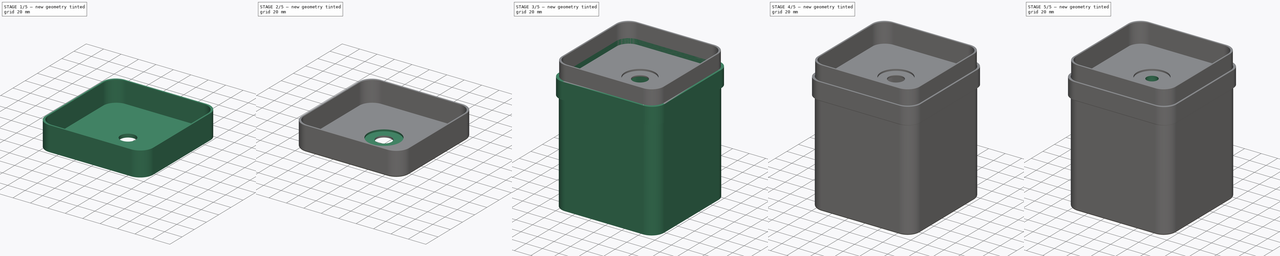
[diagram: build sequence overview — one tinted view per stage of 5, left to right]
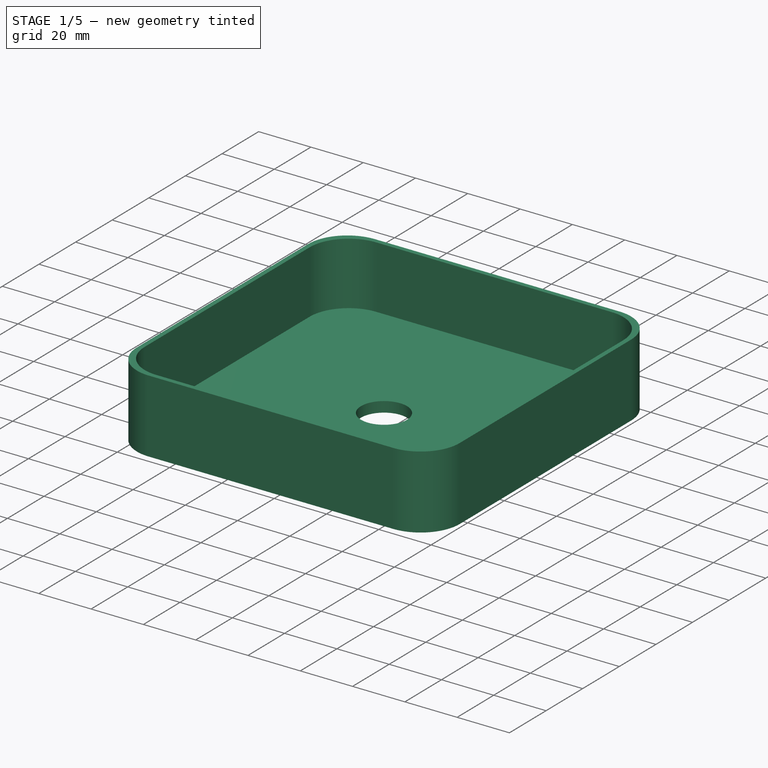
[diagram: stage 1 of 5 — iso view after this stage's code; geometry added in this stage tinted green]
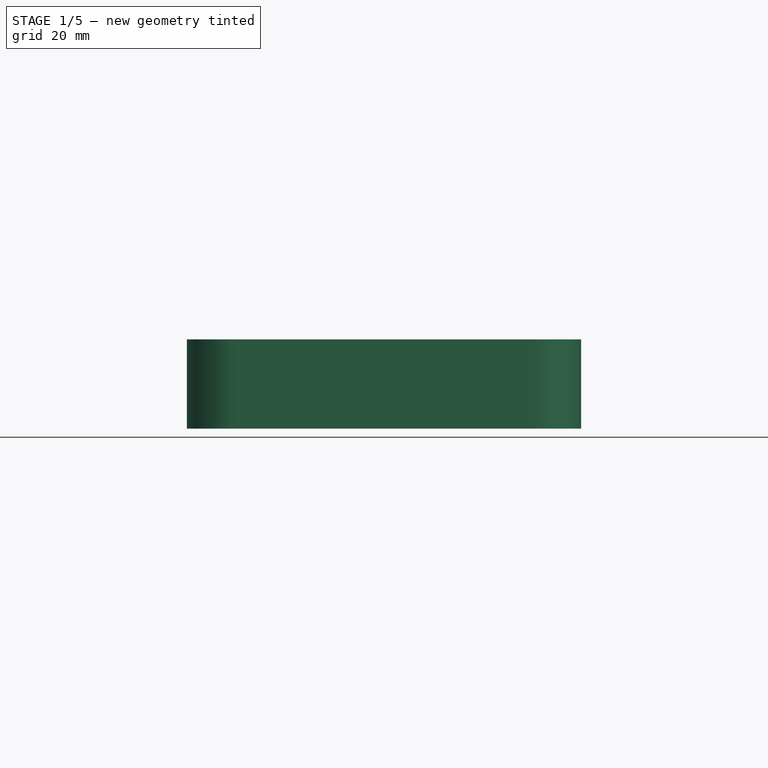
[diagram: stage 1 of 5 — front view after this stage's code; geometry added in this stage tinted green]
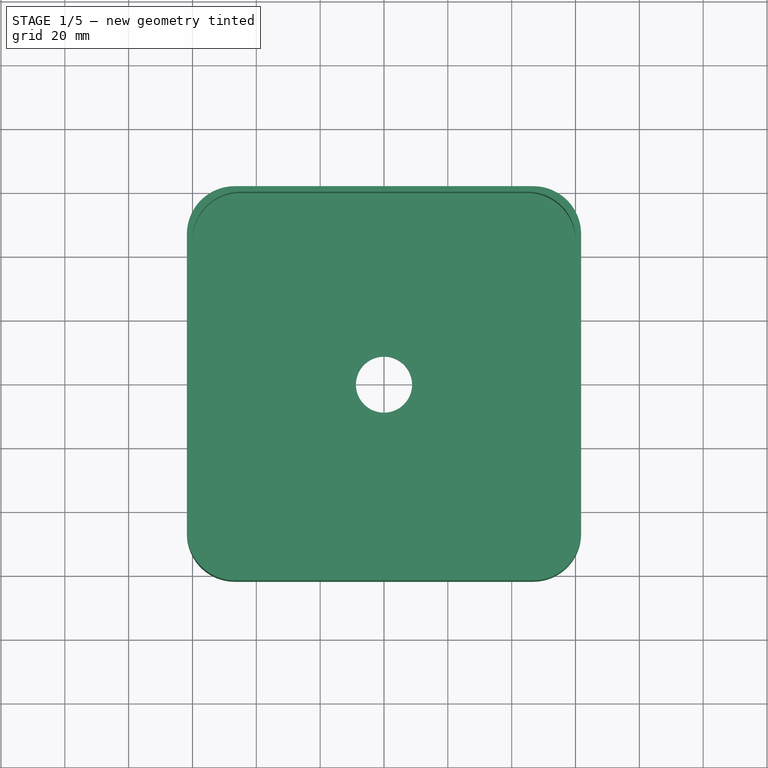
[diagram: stage 1 of 5 — top view after this stage's code; geometry added in this stage tinted green]
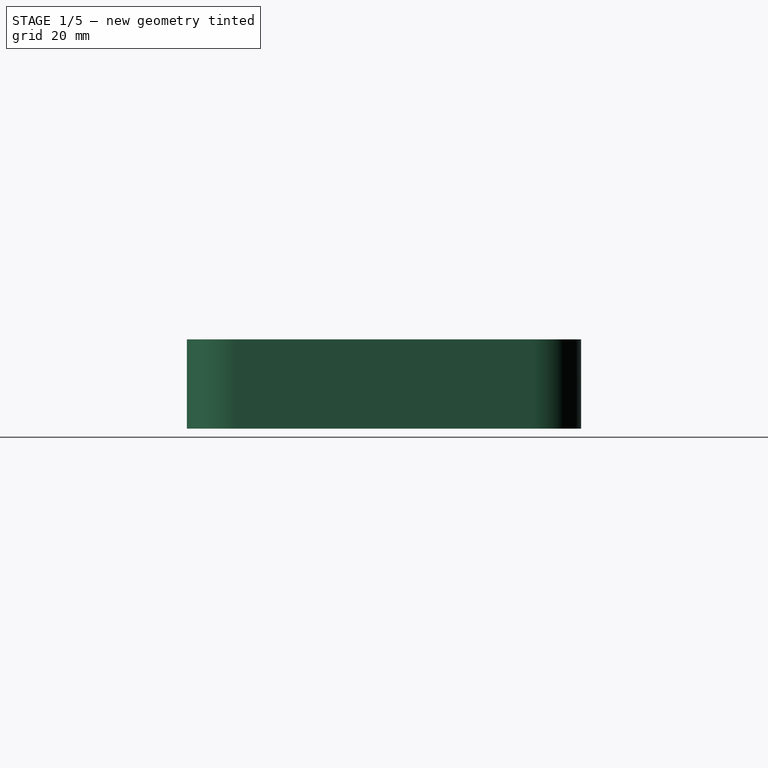
[diagram: stage 1 of 5 — right view after this stage's code; geometry added in this stage tinted green]
FCSTD DOCUMENT  (FreeCAD 2023.131R26244 +5365 (Git))
Label: Spice Cone with Tray
License: All rights reserved
LicenseURL: http://en.wikipedia.org/wiki/All_rights_reserved
objects: Sketcher::SketchObject×10, PartDesign::Fillet×6, PartDesign::Pocket×5, PartDesign::Pad×4, PartDesign::Body×3, Spreadsheet::Sheet×1, PartDesign::Revolution×1
note: 71 computed .brp shape members not serialized (recipe doc carries the construction recipe); baked Part::Feature solids carry a one-line shape summary decoded from their .brp

FEATURE [PartDesign::Body] Body  label="Cone Body"
  AutoGroupSolids = false
  ClaimAllChildren = false
  ExportMode = 0
  Group = -> [Sketch,Revolution,Sketch001,Pad]
  InvalidShape = false
  Origin = -> Origin
  Tip = -> Pad
  TreeRank = 11
  ValidateShape = true
  _ExportChildren = -> [Revolution,Pad]
  _GroupVersion = 1
FEATURE [Sketcher::SketchObject] Sketch002
  ArcFitTolerance = 1e-06
  AttachmentSupport = -> [XY_Plane001]
  ExternalBSplineMaxDegree = 5
  ExternalBSplineTolerance = 0.0001
  FullyConstrained = true
  InternalTolerance = 1e-06
  InvalidShape = false
  MakeInternals = false
  MapMode = 5
  Support = -> [XY_Plane001]
  TreeRank = 26
  ValidateShape = true
  expr: Constraints[13] = <<Parameters>>.width + 2 * <<Parameters>>.thickness - 0.5
  expr: Constraints[14] = <<Parameters>>.length + 2 * <<Parameters>>.thickness - 0.5
  expr: Constraints[19] = <<Parameters>>.corner_radius
  sketch-geometry (9):
    g0: LineSegment StartX=61.75 StartY=-46.75 StartZ=0 EndX=61.75 EndY=46.75 EndZ=0
    g1: LineSegment StartX=46.75 StartY=61.75 StartZ=0 EndX=-46.75 EndY=61.75 EndZ=0
    g2: LineSegment StartX=-61.75 StartY=46.75 StartZ=0 EndX=-61.75 EndY=-46.75 EndZ=0
    g3: LineSegment StartX=-46.75 StartY=-61.75 StartZ=0 EndX=46.75 EndY=-61.75 EndZ=0
    g4: GeomPoint [constr] X=0 Y=0 Z=0
    g5: ArcOfCircle CenterX=-46.75 CenterY=46.75 CenterZ=0 NormalX=0 NormalY=0 NormalZ=1 AngleXU=0 Radius=15 StartAngle=1.5708 EndAngle=3.14159
    g6: ArcOfCircle CenterX=46.75 CenterY=46.75 CenterZ=0 NormalX=0 NormalY=0 NormalZ=1 AngleXU=0 Radius=15 StartAngle=0 EndAngle=1.5708
    g7: ArcOfCircle CenterX=46.75 CenterY=-46.75 CenterZ=0 NormalX=0 NormalY=0 NormalZ=1 AngleXU=0 Radius=15 StartAngle=4.71239 EndAngle=6.28319
    g8: ArcOfCircle CenterX=-46.75 CenterY=-46.75 CenterZ=0 NormalX=0 NormalY=0 NormalZ=1 AngleXU=0 Radius=15 StartAngle=3.14159 EndAngle=4.71239
  constraints (20):
    c: Horizontal(g1)
    c: Horizontal(g3)
    c: Vertical(g0)
    c: Vertical(g2)
    c: Coincident(g4,g-1)
    c: Tangent(g1,g5) = -1.5708
    c: Tangent(g2,g5) = -1.5708
    c: Tangent(g0,g6) = -1.5708
    c: Tangent(g1,g6) = -1.5708
    c: Tangent(g0,g7) = -1.5708
    c: Tangent(g3,g7) = -1.5708
    c: Tangent(g2,g8) = -1.5708
    c: Tangent(g3,g8) = -1.5708
    c: DistanceX(g2,g0) = 123.5
    c: DistanceY(g3,g1) = 123.5
    c: Equal(g5,g6)
    c: Equal(g5,g7)
    c: Equal(g5,g8)
    c: Symmetric(g6,g8,g4)
    c: Radius(g5) = 15
FEATURE [PartDesign::Pad] Pad001
  AddSubType = 0
  AlongSketchNormal = false
  AutoTaperInnerAngle = true
  CheckUpToFaceLimits = true
  ClaimChildren = false
  Direction = (0,0,1)
  Fit = 0
  FitJoin = 0
  InnerFit = 0
  InnerFitJoin = 0
  InvalidShape = false
  Length = 28
  Length2 = 100
  Linearize = true
  NewSolid = false
  Profile = -> Sketch002
  Suppress = false
  TaperInnerAngle = 0
  TaperInnerAngleRev = 0
  TreeRank = 27
  Type = 0
  ValidateShape = true
  _ProfileBasedVersion = 1
  expr: Length = <<Parameters>>.plate_depth + 2 * <<Parameters>>.thickness
FEATURE [Sketcher::SketchObject] Sketch003
  ArcFitTolerance = 1e-06
  AttachmentSupport = -> [Pad001]
  ExternalBSplineMaxDegree = 5
  ExternalBSplineTolerance = 0.0001
  FullyConstrained = true
  InternalTolerance = 1e-06
  InvalidShape = false
  MakeInternals = false
  MapMode = 5
  Placement = pos=(0,0,28) rot=(0,0,1;0rad)
  Support = -> [Pad001]
  TreeRank = 28
  ValidateShape = true
  expr: Constraints[17] = <<Parameters>>.width
  expr: Constraints[18] = <<Parameters>>.length
  expr: Constraints[19] = <<Parameters>>.corner_radius
  sketch-geometry (9):
    g0: LineSegment StartX=60 StartY=-45 StartZ=0 EndX=60 EndY=45 EndZ=0
    g1: LineSegment StartX=45 StartY=60 StartZ=0 EndX=-45 EndY=60 EndZ=0
    g2: LineSegment StartX=-60 StartY=45 StartZ=0 EndX=-60 EndY=-45 EndZ=0
    g3: LineSegment StartX=-45 StartY=-60 StartZ=0 EndX=45 EndY=-60 EndZ=0
    g4: GeomPoint [constr] X=0 Y=0 Z=0
    g5: ArcOfCircle CenterX=-45 CenterY=45 CenterZ=0 NormalX=0 NormalY=0 NormalZ=1 AngleXU=0 Radius=15 StartAngle=1.5708 EndAngle=3.14159
    g6: ArcOfCircle CenterX=45 CenterY=45 CenterZ=0 NormalX=0 NormalY=0 NormalZ=1 AngleXU=0 Radius=15 StartAngle=0 EndAngle=1.5708
    g7: ArcOfCircle CenterX=45 CenterY=-45 CenterZ=0 NormalX=0 NormalY=0 NormalZ=1 AngleXU=0 Radius=15 StartAngle=4.71239 EndAngle=6.28319
    g8: ArcOfCircle CenterX=-45 CenterY=-45 CenterZ=0 NormalX=0 NormalY=0 NormalZ=1 AngleXU=0 Radius=15 StartAngle=3.14159 EndAngle=4.71239
  constraints (20):
    c: Horizontal(g1)
    c: Horizontal(g3)
    c: Vertical(g0)
    c: Vertical(g2)
    c: Coincident(g4,g-1)
    c: Tangent(g1,g5) = -1.5708
    c: Tangent(g2,g5) = -1.5708
    c: Tangent(g0,g6) = -1.5708
    c: Tangent(g1,g6) = -1.5708
    c: Tangent(g0,g7) = -1.5708
    c: Tangent(g3,g7) = -1.5708
    c: Tangent(g2,g8) = -1.5708
    c: Tangent(g3,g8) = -1.5708
    c: Symmetric(g6,g8,g4)
    c: Equal(g5,g6)
    c: Equal(g5,g7)
    c: Equal(g5,g8)
    c: DistanceX(g2,g0) = 120
    c: DistanceY(g3,g1) = 120
    c: Radius(g5) = 15
FEATURE [PartDesign::Pocket] Pocket
  AddSubType = 1
  AutoTaperInnerAngle = true
  BaseFeature = -> Pad001
  CheckUpToFaceLimits = true
  ClaimChildren = false
  Fit = 0
  FitJoin = 0
  InnerFit = 0
  InnerFitJoin = 0
  InvalidShape = false
  Length = 24
  Length2 = 100
  Linearize = true
  NewSolid = false
  Profile = -> Sketch003
  Suppress = false
  TaperInnerAngle = 0
  TaperInnerAngleRev = 0
  TreeRank = 29
  Type = 0
  ValidateShape = true
  _ProfileBasedVersion = 1
  _Version = 1
  expr: Length = <<Parameters>>.plate_depth
FEATURE [Sketcher::SketchObject] Sketch004
  ArcFitTolerance = 1e-06
  AttachmentSupport = -> [Pocket]
  ExternalBSplineMaxDegree = 5
  ExternalBSplineTolerance = 0.0001
  FullyConstrained = true
  InternalTolerance = 1e-06
  InvalidShape = false
  MakeInternals = false
  MapMode = 5
  Placement = pos=(0,0,4) rot=(0,0,1;0rad)
  Support = -> [Pocket]
  TreeRank = 30
  ValidateShape = true
  expr: Constraints[1] = (<<Parameters>>.code_diameter_max + 2 * <<Parameters>>.thickness) * 1.02
  sketch-geometry (1):
    g0: Circle CenterX=0 CenterY=0 CenterZ=0 NormalX=0 NormalY=0 NormalZ=1 AngleXU=0 Radius=8.7975
  constraints (2):
    c: Coincident(g0,g-1)
    c: Diameter(g0) = 17.595
FEATURE [PartDesign::Pocket] Pocket001
  AddSubType = 1
  AutoTaperInnerAngle = true
  BaseFeature = -> Pocket
  CheckUpToFaceLimits = true
  ClaimChildren = false
  Fit = 0
  FitJoin = 0
  InnerFit = 0
  InnerFitJoin = 0
  InvalidShape = false
  Length = 4
  Length2 = 100
  Linearize = true
  NewSolid = false
  Profile = -> Sketch004
  Suppress = false
  TaperInnerAngle = 0
  TaperInnerAngleRev = 0
  TreeRank = 31
  Type = 0
  ValidateShape = true
  _ProfileBasedVersion = 1
  _Version = 1
  expr: Length = <<Parameters>>.thickness * 2
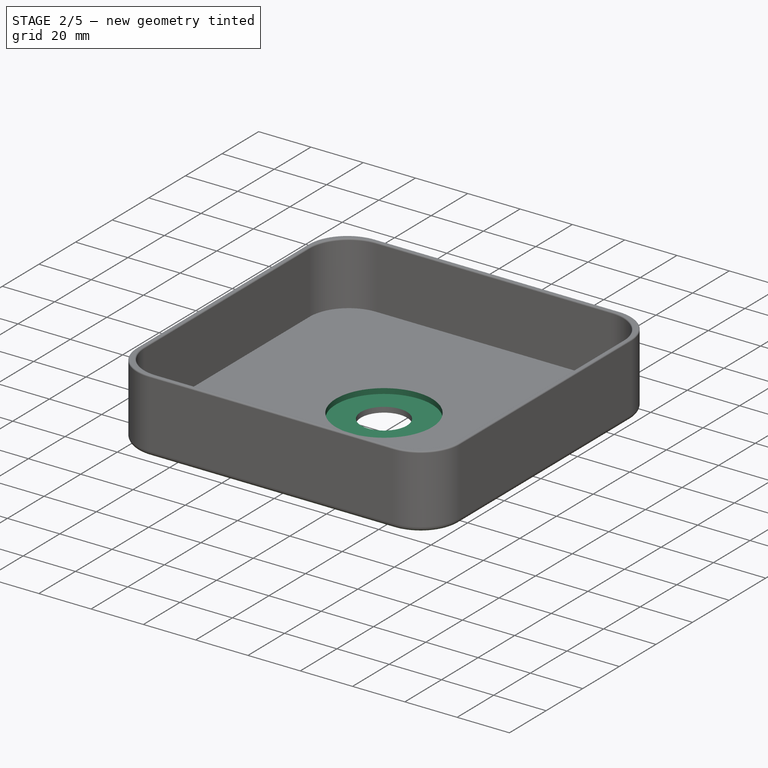
[diagram: stage 2 of 5 — iso view after this stage's code; geometry added in this stage tinted green]
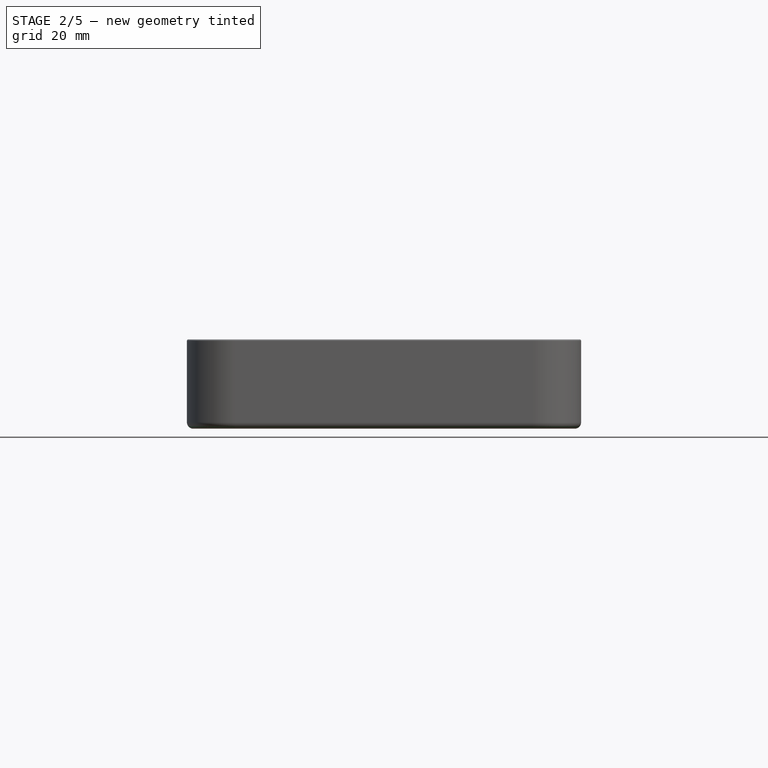
[diagram: stage 2 of 5 — front view after this stage's code; geometry added in this stage tinted green]
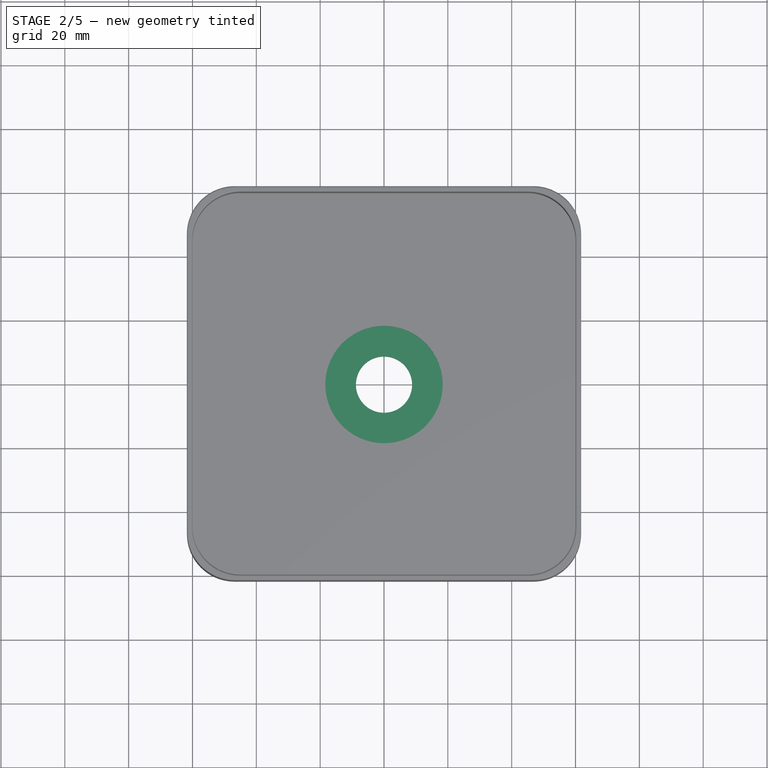
[diagram: stage 2 of 5 — top view after this stage's code; geometry added in this stage tinted green]
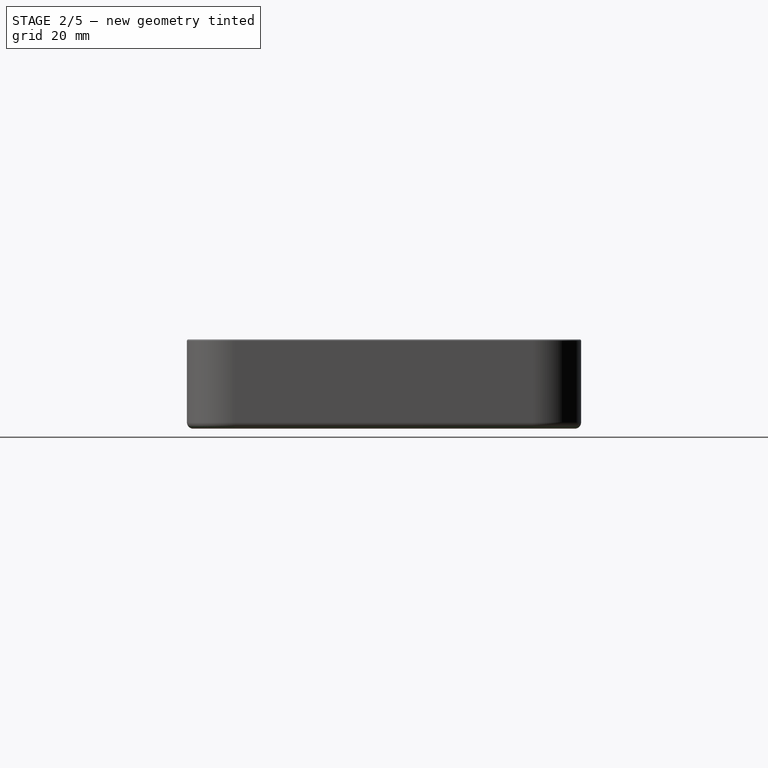
[diagram: stage 2 of 5 — right view after this stage's code; geometry added in this stage tinted green]
FEATURE [Sketcher::SketchObject] Sketch005
  ArcFitTolerance = 1e-06
  AttachmentSupport = -> [Pocket001]
  ExternalBSplineMaxDegree = 5
  ExternalBSplineTolerance = 0.0001
  FullyConstrained = true
  InternalTolerance = 1e-06
  InvalidShape = false
  MakeInternals = false
  MapMode = 5
  Placement = pos=(0,0,4) rot=(0,0,1;0rad)
  Support = -> [Pocket001]
  TreeRank = 32
  ValidateShape = true
  expr: Constraints[1] = <<Parameters>>.lip_diameter * 1.05
  sketch-geometry (1):
    g0: Circle CenterX=0 CenterY=0 CenterZ=0 NormalX=0 NormalY=0 NormalZ=1 AngleXU=0 Radius=18.375
  constraints (2):
    c: Coincident(g0,g-1)
    c: Diameter(g0) = 36.75
FEATURE [PartDesign::Pocket] Pocket002
  AddSubType = 1
  AutoTaperInnerAngle = true
  BaseFeature = -> Pocket001
  CheckUpToFaceLimits = true
  ClaimChildren = false
  Fit = 0
  FitJoin = 0
  InnerFit = 0
  InnerFitJoin = 0
  InvalidShape = false
  Length = 2
  Length2 = 100
  Linearize = true
  NewSolid = false
  Profile = -> Sketch005
  Suppress = false
  TaperInnerAngle = 0
  TaperInnerAngleRev = 0
  TreeRank = 33
  Type = 0
  ValidateShape = true
  _ProfileBasedVersion = 1
  _Version = 1
  expr: Length = <<Parameters>>.thickness
FEATURE [PartDesign::Body] Body002  label="Base"
  AutoGroupSolids = false
  ClaimAllChildren = false
  ExportMode = 0
  Group = -> [Sketch006,Pad002,Sketch007,Pad003,Sketch008,Pocket003,Sketch009,Pocket004,Fillet,Fillet001,Fillet002]
  InvalidShape = false
  Origin = -> Origin002
  Tip = -> Fillet002
  TreeRank = 43
  ValidateShape = true
  _ExportChildren = -> [Pad002,Pad003,Pocket003,Pocket004,Fillet,Fillet001,Fillet002]
  _GroupVersion = 1
FEATURE [PartDesign::Fillet] Fillet003
  AddSubType = 0
  Base = -> Pocket002 [Face5]
  BaseFeature = -> Pocket002
  InvalidShape = false
  NewSolid = false
  Radius = 0.5
  SupportTransform = false
  Suppress = false
  TreeRank = 55
  ValidateShape = true
FEATURE [PartDesign::Fillet] Fillet004
  AddSubType = 0
  Base = -> Fillet003 [Edge16]
  BaseFeature = -> Fillet003
  InvalidShape = false
  NewSolid = false
  Radius = 2
  SupportTransform = false
  Suppress = false
  TreeRank = 56
  ValidateShape = true
  expr: Radius = <<Parameters>>.thickness
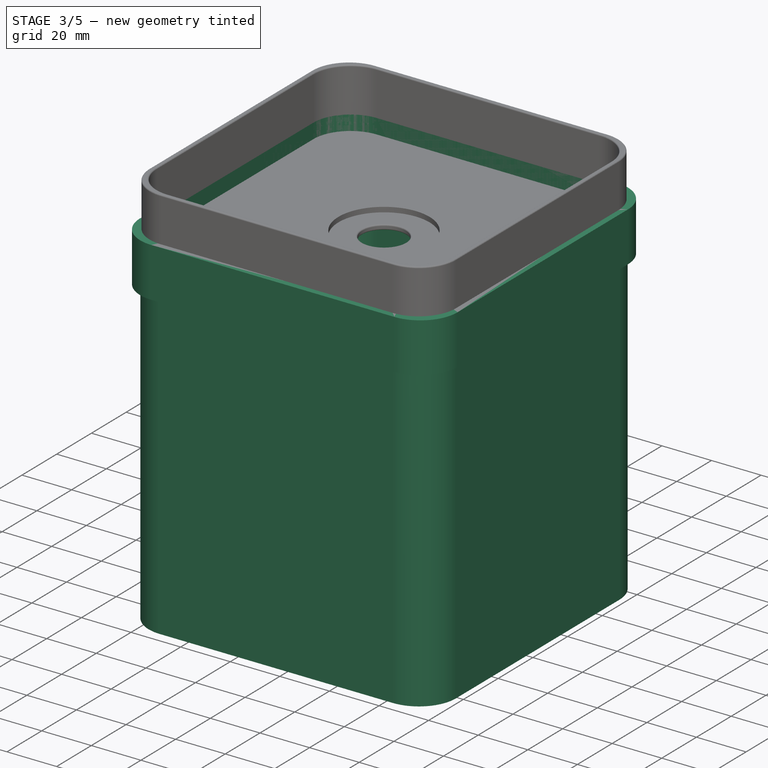
[diagram: stage 3 of 5 — iso view after this stage's code; geometry added in this stage tinted green]
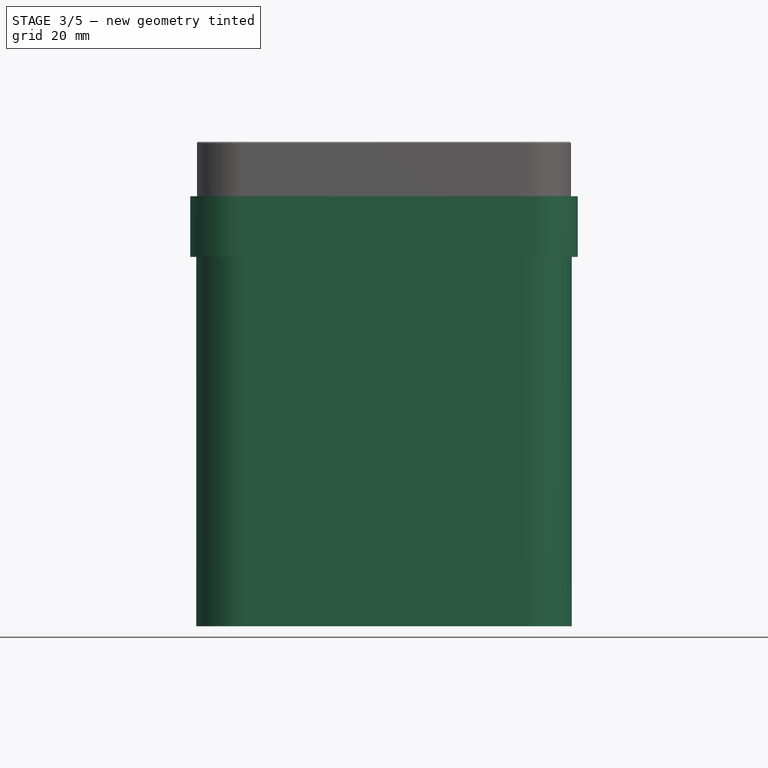
[diagram: stage 3 of 5 — front view after this stage's code; geometry added in this stage tinted green]
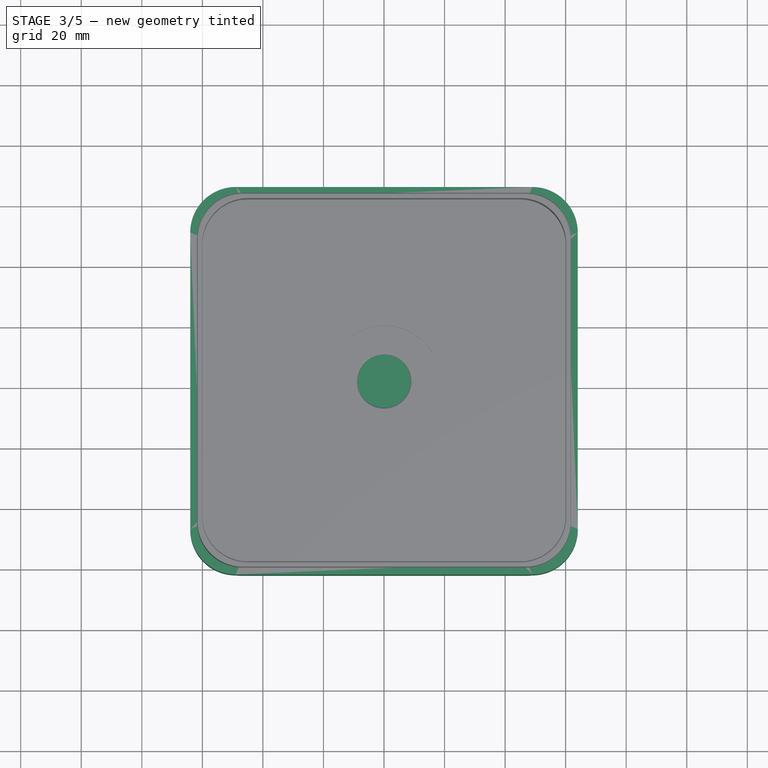
[diagram: stage 3 of 5 — top view after this stage's code; geometry added in this stage tinted green]
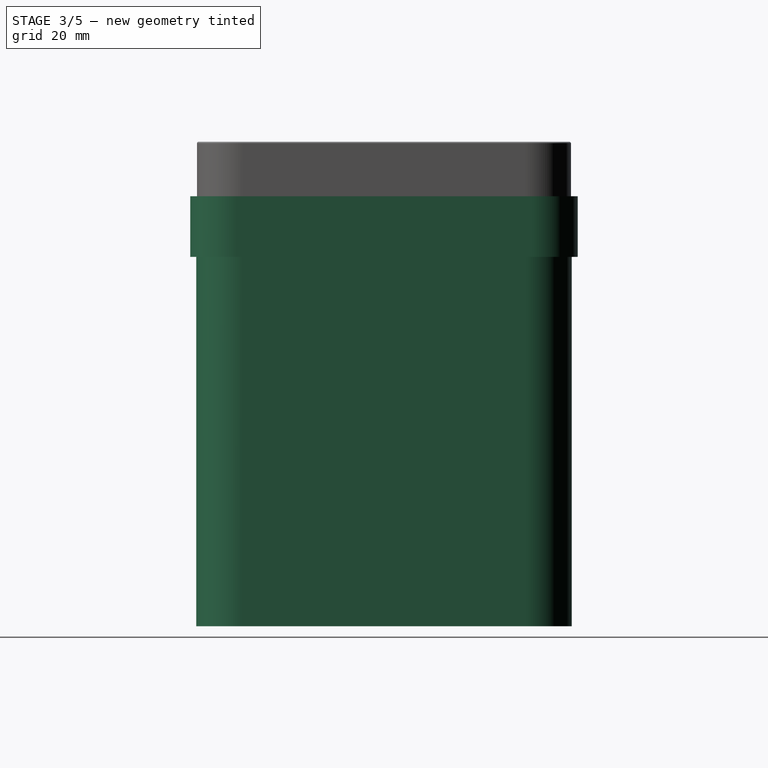
[diagram: stage 3 of 5 — right view after this stage's code; geometry added in this stage tinted green]
FEATURE [Sketcher::SketchObject] Sketch006
  ArcFitTolerance = 1e-06
  AttachmentSupport = -> [XY_Plane002]
  ExternalBSplineMaxDegree = 5
  ExternalBSplineTolerance = 0.0001
  FullyConstrained = true
  InternalTolerance = 1e-06
  InvalidShape = false
  MakeInternals = false
  MapMode = 5
  Support = -> [XY_Plane002]
  TreeRank = 44
  ValidateShape = true
  expr: Constraints[13] = <<Parameters>>.length + 2 * <<Parameters>>.thickness
  expr: Constraints[14] = <<Parameters>>.width + 2 * <<Parameters>>.thickness
  expr: Constraints[19] = <<Parameters>>.corner_radius
  sketch-geometry (9):
    g0: LineSegment StartX=62 StartY=-47 StartZ=0 EndX=62 EndY=47 EndZ=0
    g1: LineSegment StartX=47 StartY=62 StartZ=0 EndX=-47 EndY=62 EndZ=0
    g2: LineSegment StartX=-62 StartY=47 StartZ=0 EndX=-62 EndY=-47 EndZ=0
    g3: LineSegment StartX=-47 StartY=-62 StartZ=0 EndX=47 EndY=-62 EndZ=0
    g4: GeomPoint [constr] X=0 Y=0 Z=0
    g5: ArcOfCircle CenterX=-47 CenterY=47 CenterZ=0 NormalX=0 NormalY=0 NormalZ=1 AngleXU=0 Radius=15 StartAngle=1.5708 EndAngle=3.14159
    g6: ArcOfCircle CenterX=47 CenterY=47 CenterZ=0 NormalX=0 NormalY=0 NormalZ=1 AngleXU=0 Radius=15 StartAngle=2e-16 EndAngle=1.5708
    g7: ArcOfCircle CenterX=47 CenterY=-47 CenterZ=0 NormalX=0 NormalY=0 NormalZ=1 AngleXU=0 Radius=15 StartAngle=4.71239 EndAngle=6.28319
    g8: ArcOfCircle CenterX=-47 CenterY=-47 CenterZ=0 NormalX=0 NormalY=0 NormalZ=1 AngleXU=0 Radius=15 StartAngle=3.14159 EndAngle=4.71239
  constraints (20):
    c: Horizontal(g1)
    c: Horizontal(g3)
    c: Vertical(g0)
    c: Vertical(g2)
    c: Coincident(g4,g-1)
    c: Tangent(g1,g5) = -1.5708
    c: Tangent(g2,g5) = -1.5708
    c: Tangent(g0,g6) = -1.5708
    c: Tangent(g1,g6) = -1.5708
    c: Tangent(g0,g7) = -1.5708
    c: Tangent(g3,g7) = -1.5708
    c: Tangent(g2,g8) = -1.5708
    c: Tangent(g3,g8) = -1.5708
    c: DistanceY(g3,g1) = 124
    c: DistanceX(g2,g0) = 124
    c: Symmetric(g6,g8,g4)
    c: Equal(g5,g6)
    c: Equal(g5,g7)
    c: Equal(g5,g8)
    c: Radius(g5) = 15
FEATURE [PartDesign::Pad] Pad002
  AddSubType = 0
  AlongSketchNormal = false
  AutoTaperInnerAngle = true
  CheckUpToFaceLimits = true
  ClaimChildren = false
  Direction = (0,0,1)
  Fit = 0
  FitJoin = 0
  InnerFit = 0
  InnerFitJoin = 0
  InvalidShape = false
  Length = 132
  Length2 = 100
  Linearize = true
  NewSolid = false
  Profile = -> Sketch006
  Reversed = true
  Suppress = false
  TaperInnerAngle = 0
  TaperInnerAngleRev = 0
  TreeRank = 45
  Type = 0
  ValidateShape = true
  _ProfileBasedVersion = 1
  expr: Length = <<Parameters>>.cone_length + <<Parameters>>.cone_protruding + <<Parameters>>.thickness + 5
FEATURE [Sketcher::SketchObject] Sketch007
  ArcFitTolerance = 1e-06
  AttachmentSupport = -> [Pad002]
  ExternalBSplineMaxDegree = 5
  ExternalBSplineTolerance = 0.0001
  FullyConstrained = true
  InternalTolerance = 1e-06
  InvalidShape = false
  MakeInternals = false
  MapMode = 5
  Support = -> [Pad002]
  TreeRank = 46
  ValidateShape = true
  expr: Constraints[17] = <<Parameters>>.corner_radius
  expr: Constraints[18] = <<Parameters>>.width + 4 * <<Parameters>>.thickness
  expr: Constraints[19] = <<Parameters>>.length + 4 * <<Parameters>>.thickness
  sketch-geometry (9):
    g0: LineSegment StartX=64 StartY=-49 StartZ=0 EndX=64 EndY=49 EndZ=0
    g1: LineSegment StartX=49 StartY=64 StartZ=0 EndX=-49 EndY=64 EndZ=0
    g2: LineSegment StartX=-64 StartY=49 StartZ=0 EndX=-64 EndY=-49 EndZ=0
    g3: LineSegment StartX=-49 StartY=-64 StartZ=0 EndX=49 EndY=-64 EndZ=0
    g4: GeomPoint [constr] X=0 Y=0 Z=0
    g5: ArcOfCircle CenterX=-49 CenterY=49 CenterZ=0 NormalX=0 NormalY=0 NormalZ=1 AngleXU=0 Radius=15 StartAngle=1.5708 EndAngle=3.14159
    g6: ArcOfCircle CenterX=49 CenterY=49 CenterZ=0 NormalX=0 NormalY=0 NormalZ=1 AngleXU=0 Radius=15 StartAngle=4e-16 EndAngle=1.5708
    g7: ArcOfCircle CenterX=49 CenterY=-49 CenterZ=0 NormalX=0 NormalY=0 NormalZ=1 AngleXU=0 Radius=15 StartAngle=4.71239 EndAngle=6.28319
    g8: ArcOfCircle CenterX=-49 CenterY=-49 CenterZ=0 NormalX=0 NormalY=0 NormalZ=1 AngleXU=0 Radius=15 StartAngle=3.14159 EndAngle=4.71239
  constraints (20):
    c: Horizontal(g1)
    c: Horizontal(g3)
    c: Vertical(g0)
    c: Vertical(g2)
    c: Coincident(g4,g-1)
    c: Tangent(g1,g5) = -1.5708
    c: Tangent(g2,g5) = -1.5708
    c: Tangent(g0,g6) = -1.5708
    c: Tangent(g1,g6) = -1.5708
    c: Tangent(g0,g7) = -1.5708
    c: Tangent(g3,g7) = -1.5708
    c: Tangent(g2,g8) = -1.5708
    c: Tangent(g3,g8) = -1.5708
    c: Symmetric(g6,g8,g4)
    c: Equal(g5,g6)
    c: Equal(g5,g7)
    c: Equal(g5,g8)
    c: Radius(g5) = 15
    c: DistanceX(g2,g0) = 128
    c: DistanceY(g3,g1) = 128
FEATURE [PartDesign::Pad] Pad003
  AddSubType = 0
  AlongSketchNormal = false
  AutoTaperInnerAngle = true
  BaseFeature = -> Pad002
  CheckUpToFaceLimits = true
  ClaimChildren = false
  Direction = (0,0,1)
  Fit = 0
  FitJoin = 0
  InnerFit = 0
  InnerFitJoin = 0
  InvalidShape = false
  Length = 10
  Length2 = 10
  Linearize = true
  NewSolid = false
  Profile = -> Sketch007
  Suppress = false
  TaperInnerAngle = 0
  TaperInnerAngleRev = 0
  TreeRank = 47
  Type = 4
  ValidateShape = true
  _ProfileBasedVersion = 1
FEATURE [Sketcher::SketchObject] Sketch008
  ArcFitTolerance = 1e-06
  AttachmentSupport = -> [Pad003]
  ExternalBSplineMaxDegree = 5
  ExternalBSplineTolerance = 0.0001
  FullyConstrained = true
  InternalTolerance = 1e-06
  InvalidShape = false
  MakeInternals = false
  MapMode = 5
  Placement = pos=(0,0,10) rot=(0,0,1;0rad)
  Support = -> [Pad003]
  TreeRank = 48
  ValidateShape = true
  expr: Constraints[17] = <<Parameters>>.corner_radius
  expr: Constraints[18] = <<Parameters>>.width
  expr: Constraints[19] = <<Parameters>>.length
  sketch-geometry (9):
    g0: LineSegment StartX=60 StartY=-45 StartZ=0 EndX=60 EndY=45 EndZ=0
    g1: LineSegment StartX=45 StartY=60 StartZ=0 EndX=-45 EndY=60 EndZ=0
    g2: LineSegment StartX=-60 StartY=45 StartZ=0 EndX=-60 EndY=-45 EndZ=0
    g3: LineSegment StartX=-45 StartY=-60 StartZ=0 EndX=45 EndY=-60 EndZ=0
    g4: GeomPoint [constr] X=0 Y=0 Z=0
    g5: ArcOfCircle CenterX=-45 CenterY=45 CenterZ=0 NormalX=0 NormalY=0 NormalZ=1 AngleXU=0 Radius=15 StartAngle=1.5708 EndAngle=3.14159
    g6: ArcOfCircle CenterX=45 CenterY=45 CenterZ=0 NormalX=0 NormalY=0 NormalZ=1 AngleXU=0 Radius=15 StartAngle=0 EndAngle=1.5708
    g7: ArcOfCircle CenterX=45 CenterY=-45 CenterZ=0 NormalX=0 NormalY=0 NormalZ=1 AngleXU=0 Radius=15 StartAngle=4.71239 EndAngle=6.28319
    g8: ArcOfCircle CenterX=-45 CenterY=-45 CenterZ=0 NormalX=0 NormalY=0 NormalZ=1 AngleXU=0 Radius=15 StartAngle=3.14159 EndAngle=4.71239
  constraints (20):
    c: Horizontal(g1)
    c: Horizontal(g3)
    c: Vertical(g0)
    c: Vertical(g2)
    c: Coincident(g4,g-1)
    c: Tangent(g1,g5) = -1.5708
    c: Tangent(g2,g5) = -1.5708
    c: Tangent(g0,g6) = -1.5708
    c: Tangent(g1,g6) = -1.5708
    c: Tangent(g0,g7) = -1.5708
    c: Tangent(g3,g7) = -1.5708
    c: Tangent(g2,g8) = -1.5708
    c: Tangent(g3,g8) = -1.5708
    c: Symmetric(g6,g8,g4)
    c: Equal(g5,g6)
    c: Equal(g5,g7)
    c: Equal(g5,g8)
    c: Radius(g5) = 15
    c: DistanceX(g2,g0) = 120
    c: DistanceY(g3,g1) = 120
FEATURE [PartDesign::Pocket] Pocket003
  AddSubType = 1
  AutoTaperInnerAngle = true
  BaseFeature = -> Pad003
  CheckUpToFaceLimits = true
  ClaimChildren = false
  Fit = 0
  FitJoin = 0
  InnerFit = 0
  InnerFitJoin = 0
  InvalidShape = false
  Length = 140
  Length2 = 100
  Linearize = true
  NewSolid = false
  Profile = -> Sketch008
  Suppress = false
  TaperInnerAngle = 0
  TaperInnerAngleRev = 0
  TreeRank = 49
  Type = 0
  ValidateShape = true
  _ProfileBasedVersion = 1
  _Version = 1
  expr: Length = <<Parameters>>.cone_length + <<Parameters>>.cone_protruding + 15
FEATURE [PartDesign::Fillet] Fillet005
  AddSubType = 0
  Base = -> Fillet004 [Edge60,Edge30]
  BaseFeature = -> Fillet004
  InvalidShape = false
  NewSolid = false
  Radius = 0.5
  SupportTransform = false
  Suppress = false
  TreeRank = 57
  ValidateShape = true
FEATURE [PartDesign::Body] Body001  label="Tray"
  AutoGroupSolids = false
  ClaimAllChildren = false
  ExportMode = 0
  Group = -> [Sketch002,Pad001,Sketch003,Pocket,Sketch004,Pocket001,Sketch005,Pocket002,Fillet003,Fillet004,Fillet005]
  InvalidShape = false
  Origin = -> Origin001
  Tip = -> Fillet005
  TreeRank = 25
  ValidateShape = true
  _ExportChildren = -> [Pad001,Pocket,Pocket001,Pocket002,Fillet003,Fillet004,Fillet005]
  _GroupVersion = 1
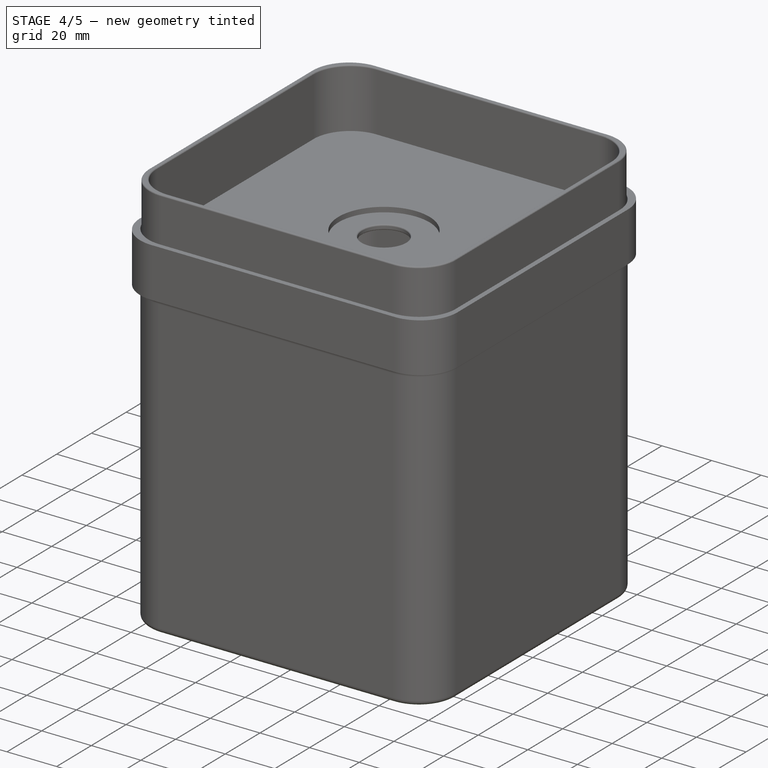
[diagram: stage 4 of 5 — iso view after this stage's code; geometry added in this stage tinted green]
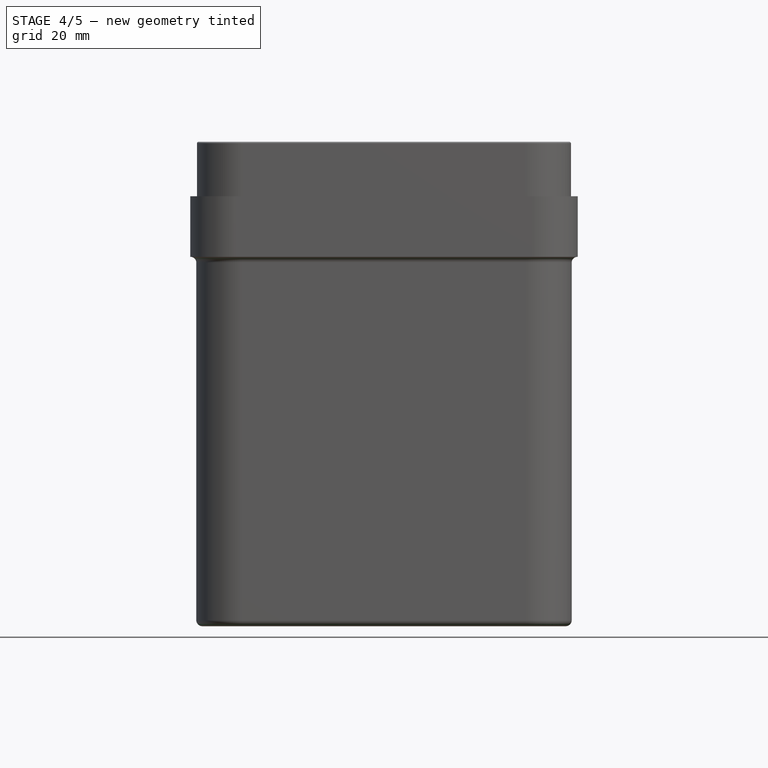
[diagram: stage 4 of 5 — front view after this stage's code; geometry added in this stage tinted green]
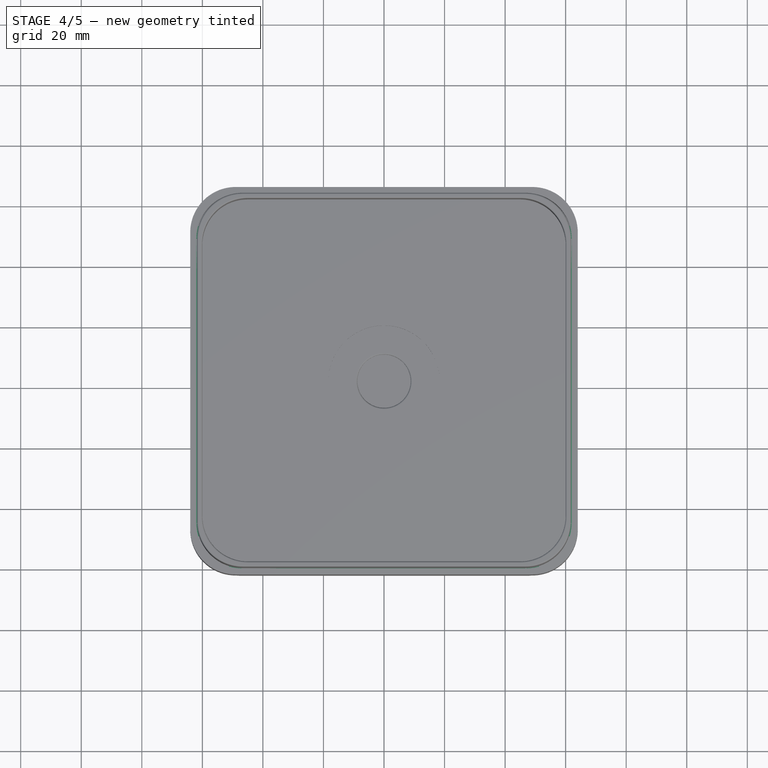
[diagram: stage 4 of 5 — top view after this stage's code; geometry added in this stage tinted green]
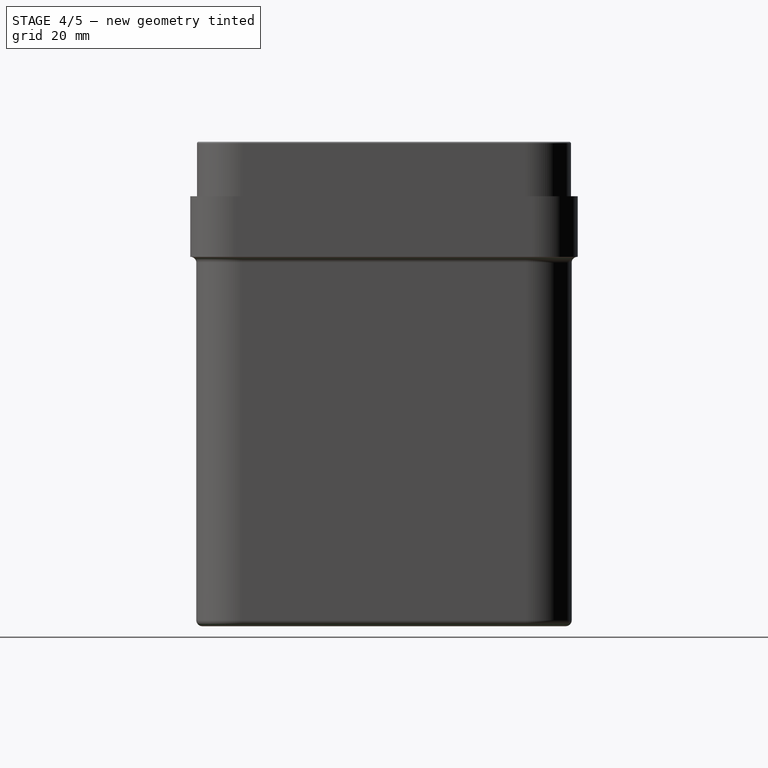
[diagram: stage 4 of 5 — right view after this stage's code; geometry added in this stage tinted green]
FEATURE [Sketcher::SketchObject] Sketch009
  ArcFitTolerance = 1e-06
  AttachmentSupport = -> [Pocket003]
  ExternalBSplineMaxDegree = 5
  ExternalBSplineTolerance = 0.0001
  FullyConstrained = true
  InternalTolerance = 1e-06
  InvalidShape = false
  MakeInternals = false
  MapMode = 5
  Placement = pos=(0,0,10) rot=(0,0,1;0rad)
  Support = -> [Pocket003]
  TreeRank = 50
  ValidateShape = true
  expr: Constraints[17] = <<Parameters>>.corner_radius
  expr: Constraints[18] = <<Parameters>>.width + 2 * <<Parameters>>.thickness
  expr: Constraints[19] = <<Parameters>>.length + 2 * <<Parameters>>.thickness
  sketch-geometry (9):
    g0: LineSegment StartX=62 StartY=-47 StartZ=0 EndX=62 EndY=47 EndZ=0
    g1: LineSegment StartX=47 StartY=62 StartZ=0 EndX=-47 EndY=62 EndZ=0
    g2: LineSegment StartX=-62 StartY=47 StartZ=0 EndX=-62 EndY=-47 EndZ=0
    g3: LineSegment StartX=-47 StartY=-62 StartZ=0 EndX=47 EndY=-62 EndZ=0
    g4: GeomPoint [constr] X=0 Y=0 Z=0
    g5: ArcOfCircle CenterX=-47 CenterY=47 CenterZ=0 NormalX=0 NormalY=0 NormalZ=1 AngleXU=0 Radius=15 StartAngle=1.5708 EndAngle=3.14159
    g6: ArcOfCircle CenterX=47 CenterY=47 CenterZ=0 NormalX=0 NormalY=0 NormalZ=1 AngleXU=0 Radius=15 StartAngle=5.574e-13 EndAngle=1.5708
    g7: ArcOfCircle CenterX=47 CenterY=-47 CenterZ=0 NormalX=0 NormalY=0 NormalZ=1 AngleXU=0 Radius=15 StartAngle=4.71239 EndAngle=6.28319
    g8: ArcOfCircle CenterX=-47 CenterY=-47 CenterZ=0 NormalX=0 NormalY=0 NormalZ=1 AngleXU=0 Radius=15 StartAngle=3.14159 EndAngle=4.71239
  constraints (20):
    c: Horizontal(g1)
    c: Horizontal(g3)
    c: Vertical(g0)
    c: Vertical(g2)
    c: Coincident(g4,g-1)
    c: Tangent(g1,g5) = -1.5708
    c: Tangent(g2,g5) = -1.5708
    c: Tangent(g0,g6) = -1.5708
    c: Tangent(g1,g6) = -1.5708
    c: Tangent(g0,g7) = -1.5708
    c: Tangent(g3,g7) = -1.5708
    c: Tangent(g2,g8) = -1.5708
    c: Tangent(g3,g8) = -1.5708
    c: Symmetric(g6,g8,g4)
    c: Equal(g5,g6)
    c: Equal(g5,g7)
    c: Equal(g5,g8)
    c: Radius(g5) = 15
    c: DistanceX(g2,g0) = 124
    c: DistanceY(g3,g1) = 124
FEATURE [PartDesign::Pocket] Pocket004
  AddSubType = 1
  AutoTaperInnerAngle = true
  BaseFeature = -> Pocket003
  CheckUpToFaceLimits = true
  ClaimChildren = false
  Fit = 0
  FitJoin = 0
  InnerFit = 0
  InnerFitJoin = 0
  InvalidShape = false
  Length = 10
  Length2 = 100
  Linearize = true
  NewSolid = false
  Profile = -> Sketch009
  Suppress = false
  TaperInnerAngle = 0
  TaperInnerAngleRev = 0
  TreeRank = 51
  Type = 0
  ValidateShape = true
  _ProfileBasedVersion = 1
  _Version = 1
FEATURE [PartDesign::Fillet] Fillet
  AddSubType = 0
  Base = -> Pocket004 [Edge18,Edge17,Edge16,Edge15,Edge14,Edge13,Edge1,Edge19]
  BaseFeature = -> Pocket004
  InvalidShape = false
  NewSolid = false
  Radius = 1.9
  SupportTransform = false
  Suppress = false
  TreeRank = 52
  ValidateShape = true
  expr: Radius = <<Parameters>>.thickness - 0.1
FEATURE [PartDesign::Fillet] Fillet001
  AddSubType = 0
  Base = -> Fillet [Face4]
  BaseFeature = -> Fillet
  InvalidShape = false
  NewSolid = false
  Radius = 2
  SupportTransform = false
  Suppress = false
  TreeRank = 53
  ValidateShape = true
  expr: Radius = <<Parameters>>.thickness
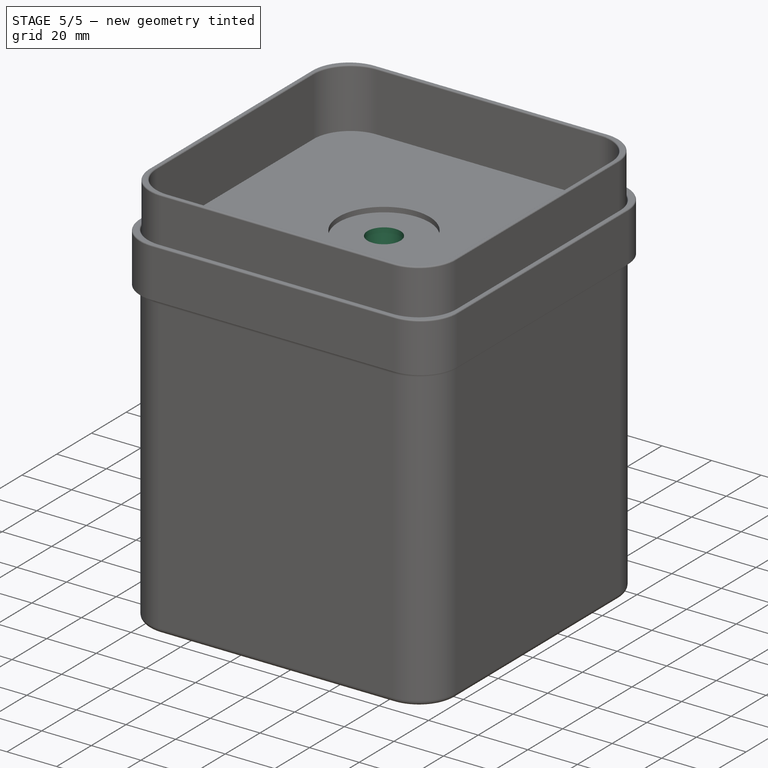
[diagram: stage 5 of 5 — iso view after this stage's code; geometry added in this stage tinted green]
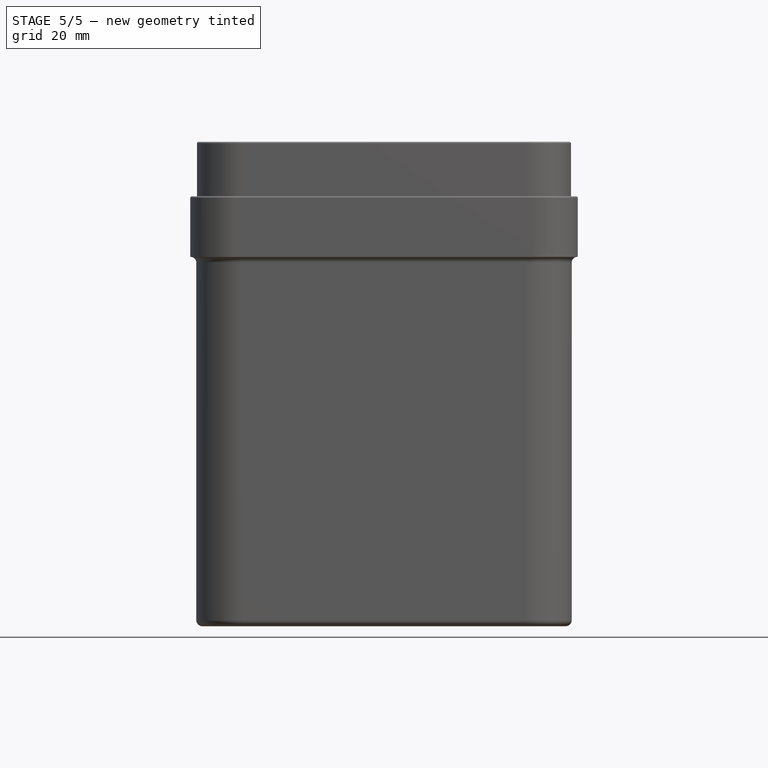
[diagram: stage 5 of 5 — front view after this stage's code; geometry added in this stage tinted green]
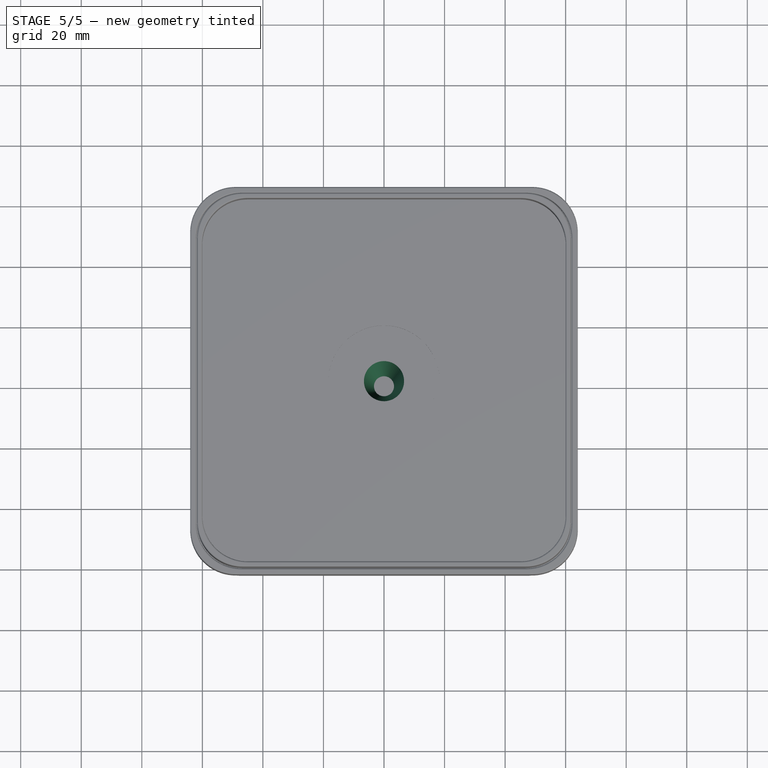
[diagram: stage 5 of 5 — top view after this stage's code; geometry added in this stage tinted green]
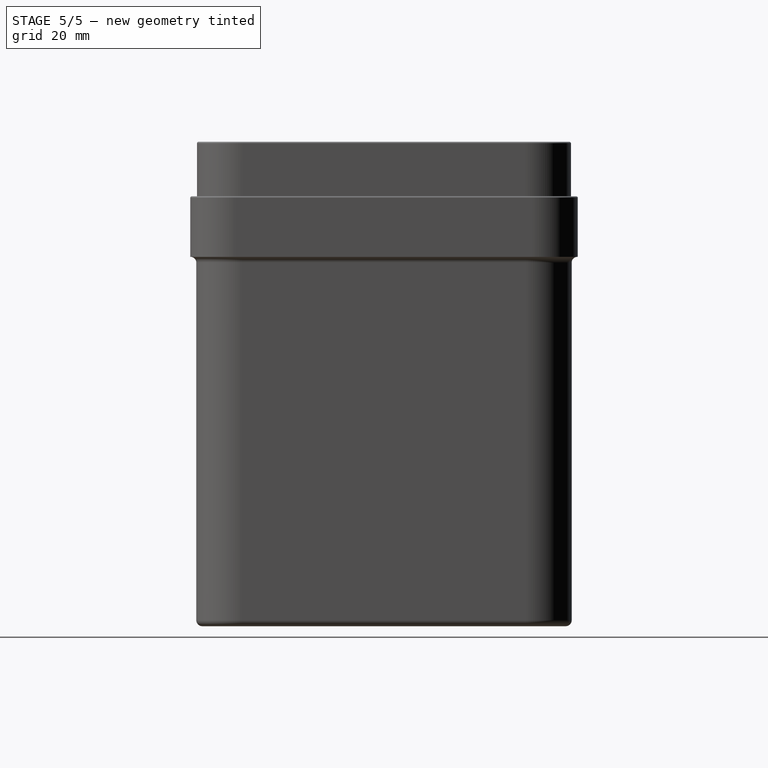
[diagram: stage 5 of 5 — right view after this stage's code; geometry added in this stage tinted green]
FEATURE [Spreadsheet::Sheet] Spreadsheet  label="Parameters"
  PythonMode = false
  ShowCells = 0
  TreeRank = 1
  cells = A1=Thickness; B1(thickness)=2; A2=Lip Diameter; B2(lip_diameter)=35; A3=Width; B3(width)=120; A4=Length; B4(length)=120; A5=Plate Depth; B5(plate_depth)=24; A6=Corner Radius; B6(corner_radius)=15; A8=Cone Max Diameter; B8(code_diameter_max)=13.25; A9=Cone Min Diameter; B9(cone_diameter_min)=6; A10=Cone Length; B10(cone_length)=110; A11=Cone Angle; B11(cone_angle)=2; A12=Cone Protruding; B12(cone_protruding)=15
FEATURE [Sketcher::SketchObject] Sketch  label="Cone Sketch"
  ArcFitTolerance = 1e-06
  AttachmentSupport = -> [XZ_Plane]
  ExternalBSplineMaxDegree = 5
  ExternalBSplineTolerance = 0.0001
  FullyConstrained = true
  InternalTolerance = 1e-06
  InvalidShape = false
  MakeInternals = false
  MapMode = 5
  Placement = pos=(0,0,0) rot=(1,0,0;1.5708rad)
  Support = -> [XZ_Plane]
  TreeRank = 12
  ValidateShape = true
  expr: Constraints[10] = Spreadsheet.code_diameter_max / 2
  expr: Constraints[11] = Spreadsheet.cone_angle
  expr: Constraints[1] = Spreadsheet.thickness
  expr: Constraints[8] = Spreadsheet.cone_length - Spreadsheet.cone_protruding
  sketch-geometry (4):
    g0: LineSegment StartX=-6.625 StartY=0 StartZ=0 EndX=-3.30753 EndY=-95 EndZ=0
    g1: LineSegment StartX=-8.625 StartY=0 StartZ=0 EndX=-5.30753 EndY=-95 EndZ=0
    g2: LineSegment StartX=-5.30753 StartY=-95 StartZ=0 EndX=-3.30753 EndY=-95 EndZ=0
    g3: LineSegment StartX=-8.625 StartY=0 StartZ=0 EndX=-6.625 EndY=0 EndZ=0
  constraints (13):
    c: Parallel(g0,g1)
    c: DistanceX(g1,g0) = 2
    c: Coincident(g2,g1)
    c: Coincident(g2,g0)
    c: Horizontal(g2)
    c: Coincident(g3,g1)
    c: Coincident(g3,g0)
    c: Horizontal(g3)
    c: DistanceY(g1,g1) = 95
    c: PointOnObject(g0,g-1)
    c: DistanceX(g0,g-1) = 6.625
    c: Angle(g-2,g0) = 0.0349066
    c: DistanceX(g0,g-1) = 3.30753
FEATURE [PartDesign::Revolution] Revolution  label="Cone"
  AddSubType = 0
  Angle = 360
  Axis = (0,-2e-16,1)
  Base = (0,0,0)
  ClaimChildren = false
  Fit = 0
  FitJoin = 0
  InnerFit = 0
  InnerFitJoin = 0
  InvalidShape = false
  Linearize = true
  NewSolid = false
  Profile = -> Sketch
  ReferenceAxis = -> Sketch [V_Axis]
  Suppress = false
  TreeRank = 13
  ValidateShape = true
  _ProfileBasedVersion = 1
FEATURE [Sketcher::SketchObject] Sketch001  label="Lip Sketch"
  ArcFitTolerance = 1e-06
  AttachmentSupport = -> [XY_Plane]
  ExternalBSplineMaxDegree = 5
  ExternalBSplineTolerance = 0.0001
  FullyConstrained = true
  InternalTolerance = 1e-06
  InvalidShape = false
  MakeInternals = false
  MapMode = 5
  Support = -> [XY_Plane]
  TreeRank = 14
  ValidateShape = true
  expr: Constraints[2] = Spreadsheet.code_diameter_max
  expr: Constraints[3] = Spreadsheet.lip_diameter
  sketch-geometry (2):
    g0: Circle CenterX=0 CenterY=0 CenterZ=0 NormalX=0 NormalY=0 NormalZ=1 AngleXU=0 Radius=17.5
    g1: Circle CenterX=0 CenterY=0 CenterZ=0 NormalX=0 NormalY=0 NormalZ=1 AngleXU=0 Radius=6.625
  constraints (4):
    c: Coincident(g0,g-1)
    c: Coincident(g1,g0)
    c: Diameter(g1) = 13.25
    c: Diameter(g0) = 35
FEATURE [PartDesign::Pad] Pad  label="Lip"
  AddSubType = 0
  AlongSketchNormal = false
  AutoTaperInnerAngle = true
  BaseFeature = -> Revolution
  CheckUpToFaceLimits = true
  ClaimChildren = false
  Direction = (0,0,1)
  Fit = 0
  FitJoin = 0
  InnerFit = 0
  InnerFitJoin = 0
  InvalidShape = false
  Length = 2
  Length2 = 100
  Linearize = true
  NewSolid = false
  Profile = -> Sketch001
  Suppress = false
  TaperInnerAngle = 0
  TaperInnerAngleRev = 0
  TreeRank = 15
  Type = 0
  ValidateShape = true
  _ProfileBasedVersion = 1
  expr: Length = Spreadsheet.thickness
FEATURE [PartDesign::Fillet] Fillet002
  AddSubType = 0
  Base = -> Fillet001 [Edge106,Edge83,Edge107,Edge84,Edge108,Edge85,Edge109,Edge86,Edge110,Edge87,Edge111,Edge88,Edge112,Edge81,Edge105,Edge82,Edge74]
  BaseFeature = -> Fillet001
  InvalidShape = false
  NewSolid = false
  Radius = 0.5
  SupportTransform = false
  Suppress = false
  TreeRank = 54
  ValidateShape = true
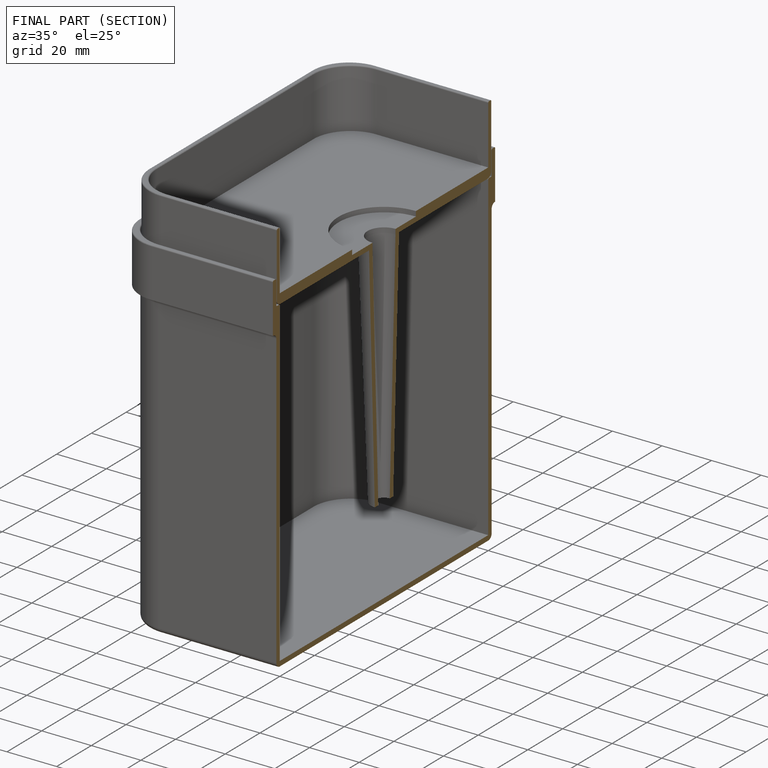
[diagram: finished part — half-section view (interior)]
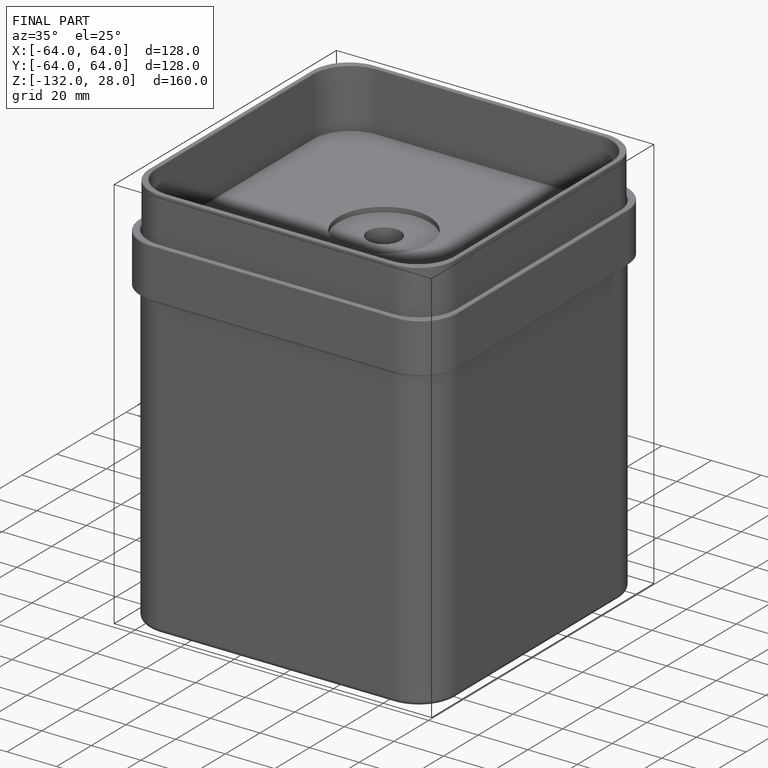
[diagram: finished part — iso view with bounding-box wireframe]
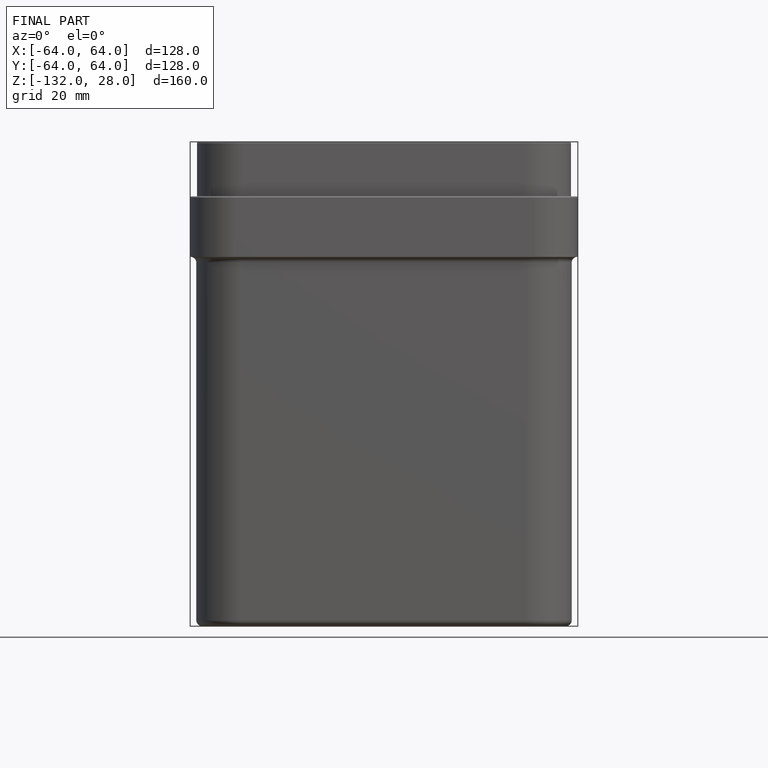
[diagram: finished part — front view with bounding-box wireframe]
